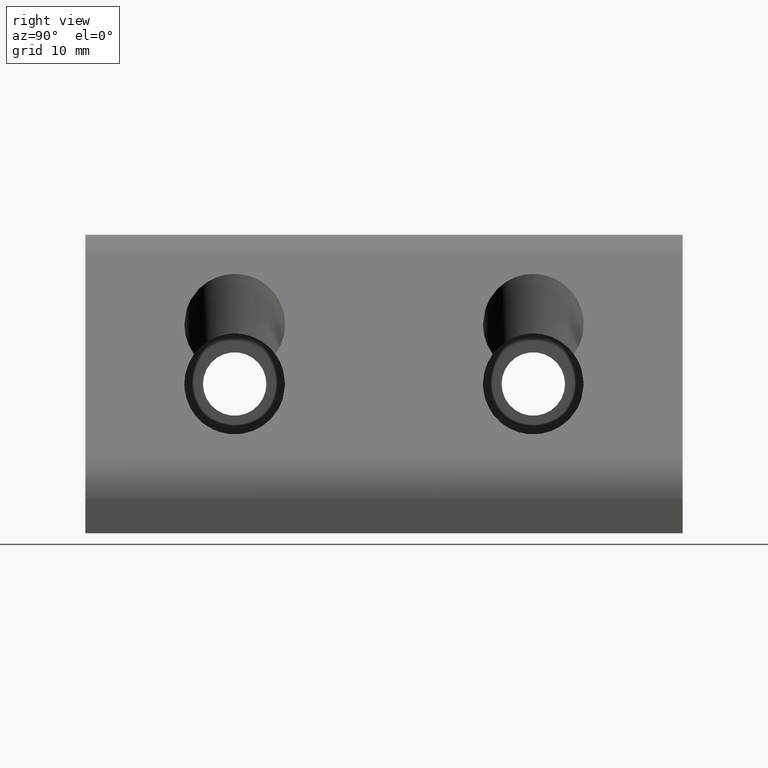
[diagram: clean part render]
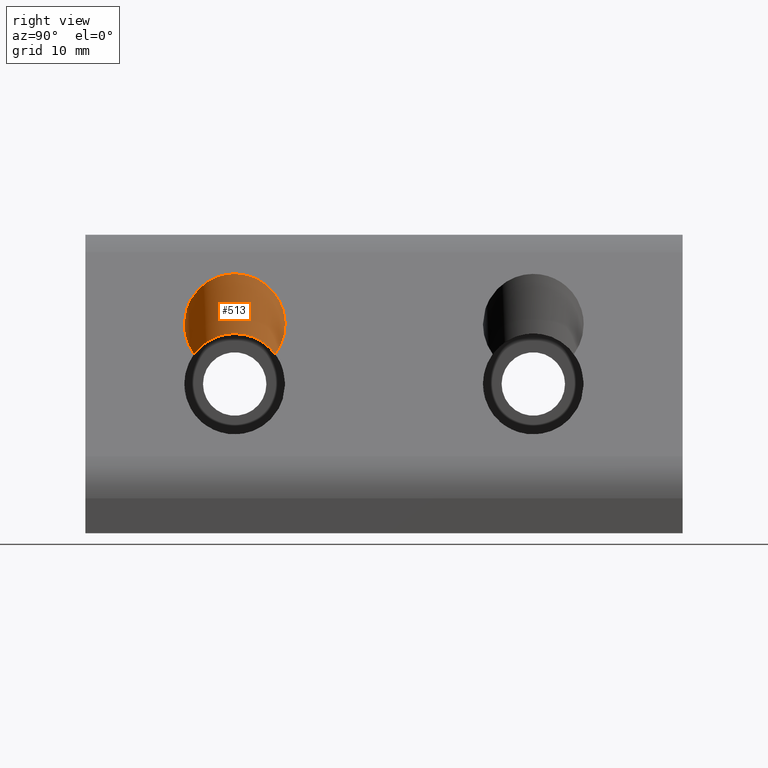
[diagram: same view with one face highlighted and labeled with its STEP entity id]
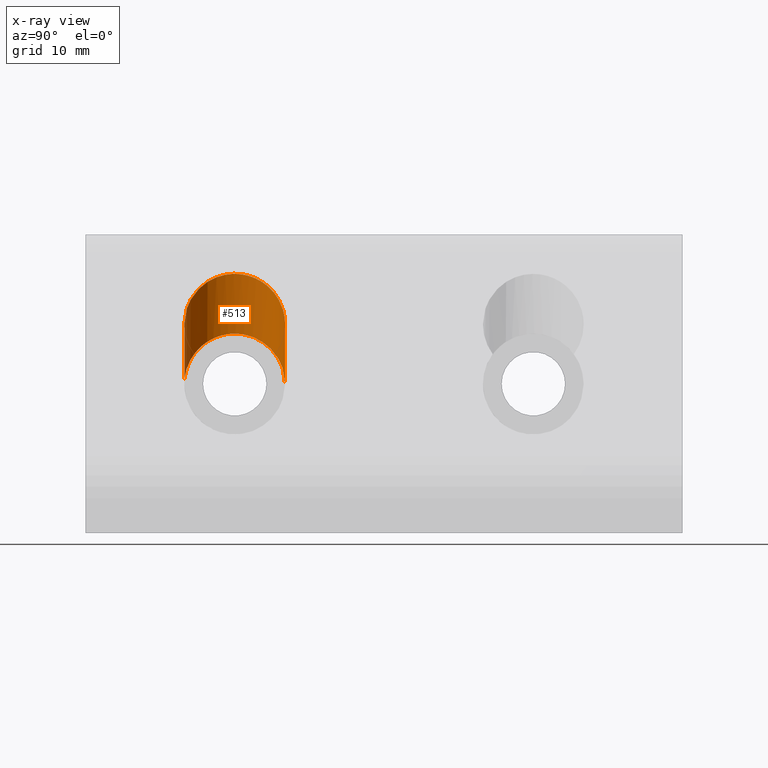
[diagram: x-ray of the same camera — body ghosted, the highlighted face saturated]
A machine part, right view. The second image highlights one B-rep face of the part: STEP entity #513.
The next image is the same camera in x-ray: the body ghosted, the highlighted face saturated — about 0% of this face is hidden behind the body in this view.
In plain terms, the highlighted cylindrical surface (partial cylindrical patch) has radius 6.75 mm, axis along (0, -0, -1).
Its self-contained STEP definition (entity closure, byte-faithful):
#98=CARTESIAN_POINT('',(19.999999999999996,-13.250000000000000,20.000000000000018));
#99=VERTEX_POINT('',#98);
#100=CARTESIAN_POINT('',(19.999999999999993,-26.750000000000011,20.000000000000018));
#101=VERTEX_POINT('',#100);
#273=CARTESIAN_POINT('',(19.999999999999996,-13.250000000000000,20.000000000000018));
#274=CARTESIAN_POINT('',(6.500000000000002,-13.249999999999989,33.500000000000007));
#275=CARTESIAN_POINT('',(6.500000000000000,-26.749999999999996,33.500000000000007));
#276=CARTESIAN_POINT('',(19.999999999999993,-26.750000000000011,20.000000000000018));
#284=(BOUNDED_CURVE()B_SPLINE_CURVE(3,(#273,#274,#275,#276),.UNSPECIFIED.,.F.,.U.)B_SPLINE_CURVE_WITH_KNOTS((4,4),(4.712388980384691,7.853981633974483),.UNSPECIFIED.)CURVE()GEOMETRIC_REPRESENTATION_ITEM()RATIONAL_B_SPLINE_CURVE((1.0,0.333333333333333,0.333333333333333,1.0))REPRESENTATION_ITEM(''));
#285=EDGE_CURVE('',#99,#101,#284,.T.);
#441=CARTESIAN_POINT('',(19.999999999999996,-13.250000000000011,28.000000000000021));
#442=VERTEX_POINT('',#441);
#459=CARTESIAN_POINT('',(19.999999999999996,-13.250000000000011,28.000000000000021));
#460=DIRECTION('',(0.0,0.0,-1.0));
#461=VECTOR('',#460,8.0);
#462=LINE('',#459,#461);
#463=EDGE_CURVE('',#442,#99,#462,.T.);
#482=CARTESIAN_POINT('',(20.0,-20.000000000000007,34.750008955876361));
#483=DIRECTION('',(0.0,-6.123234E-017,-1.0));
#484=DIRECTION('',(1.0,-1.224647E-016,7.498799E-033));
#485=AXIS2_PLACEMENT_3D('',#482,#483,#484);
#486=CYLINDRICAL_SURFACE('',#485,6.749999999999997);
#487=ORIENTED_EDGE('',*,*,#463,.F.);
#488=CARTESIAN_POINT('',(19.999999999999993,-26.750000000000011,28.000000000000021));
#489=VERTEX_POINT('',#488);
#490=CARTESIAN_POINT('',(19.999999999999993,-26.750000000000011,28.000000000000021));
#491=CARTESIAN_POINT('',(6.500000000000000,-26.750000000000007,41.500000000000028));
#492=CARTESIAN_POINT('',(6.500000000000002,-13.250000000000000,41.500000000000028));
#493=CARTESIAN_POINT('',(19.999999999999996,-13.250000000000011,28.000000000000021));
#501=(BOUNDED_CURVE()B_SPLINE_CURVE(3,(#490,#491,#492,#493),.UNSPECIFIED.,.F.,.U.)B_SPLINE_CURVE_WITH_KNOTS((4,4),(1.570796326794897,4.712388980384691),.UNSPECIFIED.)CURVE()GEOMETRIC_REPRESENTATION_ITEM()RATIONAL_B_SPLINE_CURVE((1.0,0.333333333333333,0.333333333333333,1.0))REPRESENTATION_ITEM(''));
#502=EDGE_CURVE('',#489,#442,#501,.T.);
#503=ORIENTED_EDGE('',*,*,#502,.F.);
#504=CARTESIAN_POINT('',(19.999999999999993,-26.750000000000011,28.000000000000021));
#505=DIRECTION('',(0.0,0.0,-1.0));
#506=VECTOR('',#505,8.0);
#507=LINE('',#504,#506);
#508=EDGE_CURVE('',#489,#101,#507,.T.);
#509=ORIENTED_EDGE('',*,*,#508,.T.);
#510=ORIENTED_EDGE('',*,*,#285,.F.);
#511=EDGE_LOOP('',(#487,#503,#509,#510));
#512=FACE_OUTER_BOUND('',#511,.T.);
#513=ADVANCED_FACE('',(#512),#486,.F.);